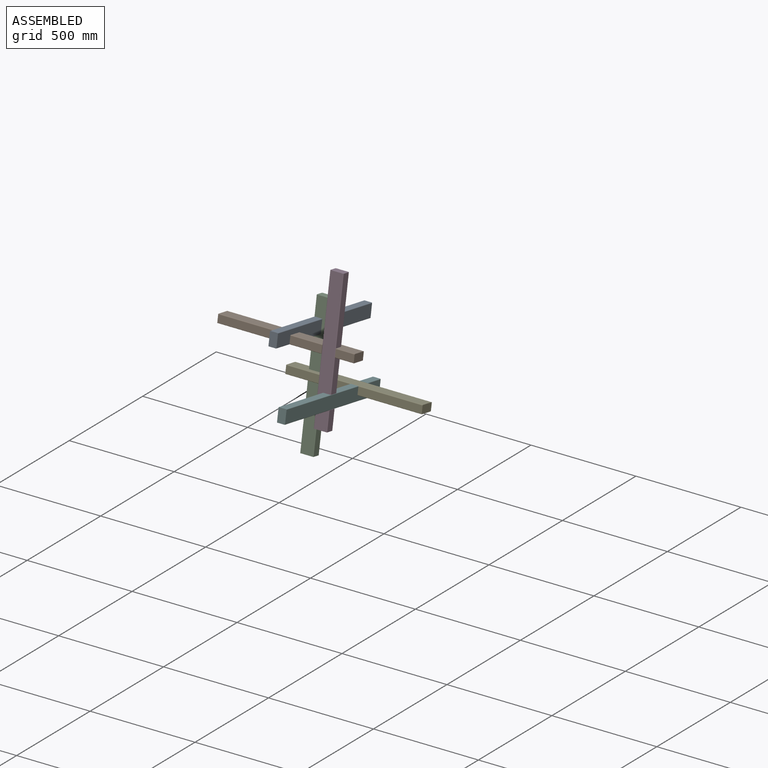
[diagram: assembled view]
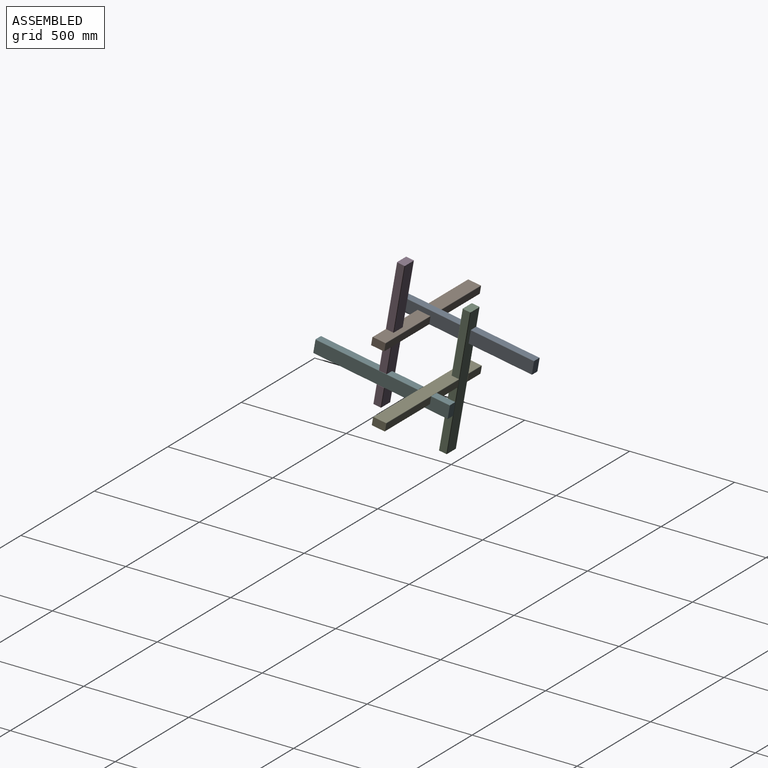
[diagram: assembled view, second angle]
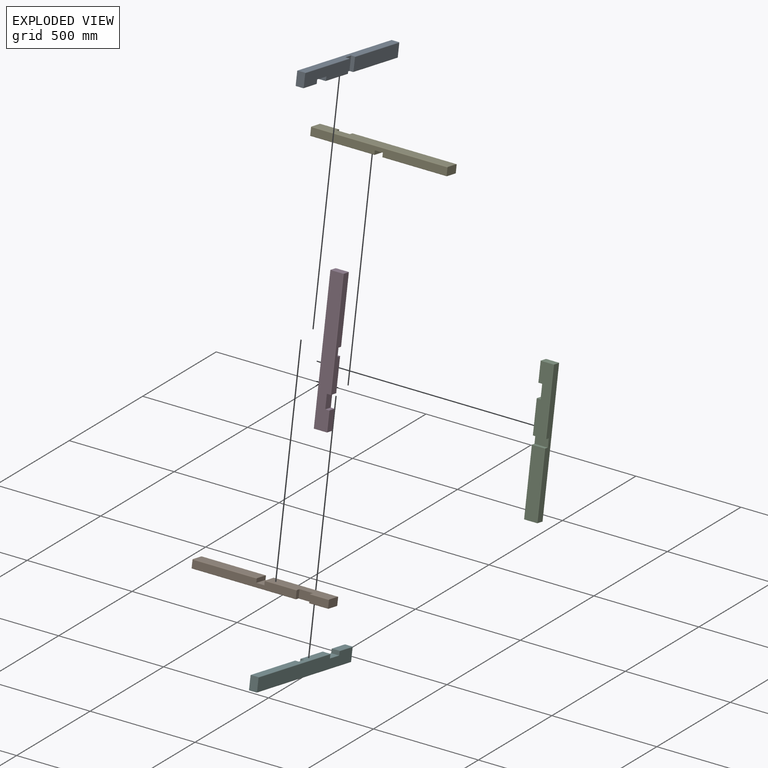
[diagram: exploded view]
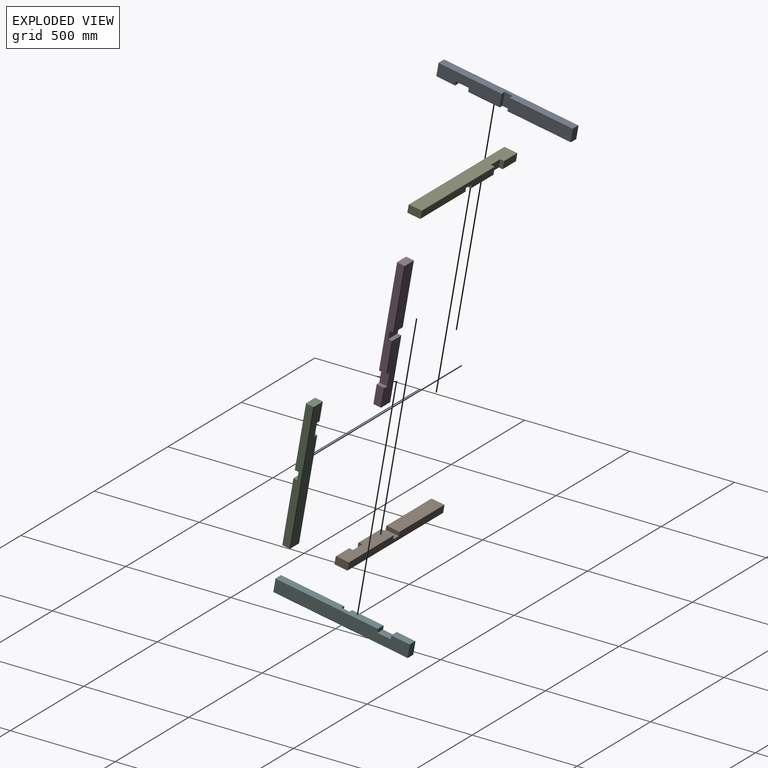
[diagram: exploded view, second angle]
ASSEMBLY  parts=6 mates=5
PART A: 22 faces, bbox 63.5x38.1x650 mm
  f0: plane 496.25x34.1mm, normal (-1,0,0), area 16272.5mm2, adj f8,f11,f12,f15,f16,f17,f18,f21
  f1: cylinder r=2mm len=90mm, axis (0,0,-1), area 282.7mm2, adj f2,f6,f10,f20
  f2: plane 305.95x59.5mm, normal (0,-1,0), area 17117.1mm2, adj f1,f8,f9,f10,f17,f19,f20,f21
  f3: plane 650x59.5mm, normal (0,1,0), area 37588.1mm2, adj f4,f10,f11,f14,f15,f19,f20,f21
  f4: cylinder r=2mm len=90mm, axis (0,0,1), area 282.7mm2, adj f3,f6,f10,f20
  f5: plane 305.95x59.5mm, normal (0,-1,0), area 18204mm2, adj f11,f12,f13,f18
  f6: plane 90x34.1mm, normal (-1,0,0), area 3069mm2, adj f1,f4,f10,f20
  f7: plane 650x34.1mm, normal (1,0,0), area 21515.4mm2, adj f9,f10,f11,f13,f14,f16,f17,f18
  f8: cylinder r=2mm len=152.2mm, axis (0,0,-1), area 478.2mm2, adj f0,f2,f17,f21
  f9: cylinder r=2mm len=305.95mm, axis (0,0,1), area 961.2mm2, adj f2,f7,f10,f17
  f10: plane 63.5x38.1mm, normal (0,0,1), area 2415.9mm2, adj f1,f2,f3,f4,f6,f7,f9,f14
  f11: plane 63.5x38.1mm, normal (0,0,-1), area 2415.9mm2, adj f0,f3,f5,f7,f12,f13,f14,f15
  f12: cylinder r=2mm len=305.95mm, axis (0,0,-1), area 961.2mm2, adj f0,f5,f11,f18
  f13: cylinder r=2mm len=305.95mm, axis (0,0,1), area 961.2mm2, adj f5,f7,f11,f18
  f14: cylinder r=2mm len=650mm, axis (0,0,-1), area 2042mm2, adj f3,f7,f10,f11
  f15: cylinder r=2mm len=496.25mm, axis (0,0,1), area 1559mm2, adj f0,f3,f11,f21
  f16: plane 63.5x38.1mm, normal (0,-1,0), area 2419.4mm2, adj f0,f7,f17,f18
  f17: plane 63.5x19.05mm, normal (0,0,-1), area 1208mm2, adj f0,f2,f7,f8,f9,f16
  f18: plane 63.5x19.05mm, normal (0,0,1), area 1208mm2, adj f0,f5,f7,f12,f13,f16
  f19: plane 63.75x38.1mm, normal (-1,0,0), area 2428.9mm2, adj f2,f3,f20,f21
  f20: plane 38.1x19.05mm, normal (0,0,-1), area 724.1mm2, adj f1,f2,f3,f4,f6,f19
  f21: plane 38.1x19.05mm, normal (0,0,1), area 724.1mm2, adj f0,f2,f3,f8,f15,f19
PART B: 22 faces, bbox 63.5x38.1x650 mm
  f0: plane 496.25x34.1mm, normal (1,0,0), area 16272.5mm2, adj f1,f4,f11,f13,f16,f17,f18,f20
  f1: cylinder r=2mm len=152.2mm, axis (0,0,1), area 478.2mm2, adj f0,f2,f17,f20
  f2: plane 305.95x59.5mm, normal (0,-1,0), area 17117.1mm2, adj f1,f8,f9,f10,f17,f19,f20,f21
  f3: plane 650x59.5mm, normal (0,1,0), area 37588.1mm2, adj f4,f10,f11,f14,f15,f19,f20,f21
  f4: cylinder r=2mm len=496.25mm, axis (0,0,-1), area 1559mm2, adj f0,f3,f11,f20
  f5: plane 305.95x59.5mm, normal (0,-1,0), area 18204mm2, adj f11,f12,f13,f18
  f6: plane 650x34.1mm, normal (-1,0,0), area 21515.4mm2, adj f8,f10,f11,f12,f15,f16,f17,f18
  f7: plane 90x34.1mm, normal (1,0,0), area 3069mm2, adj f9,f10,f14,f21
  f8: cylinder r=2mm len=305.95mm, axis (0,0,-1), area 961.2mm2, adj f2,f6,f10,f17
  f9: cylinder r=2mm len=90mm, axis (0,0,1), area 282.7mm2, adj f2,f7,f10,f21
  f10: plane 63.5x38.1mm, normal (0,0,1), area 2415.9mm2, adj f2,f3,f6,f7,f8,f9,f14,f15
  f11: plane 63.5x38.1mm, normal (0,0,-1), area 2415.9mm2, adj f0,f3,f4,f5,f6,f12,f13,f15
  f12: cylinder r=2mm len=305.95mm, axis (0,0,-1), area 961.2mm2, adj f5,f6,f11,f18
  f13: cylinder r=2mm len=305.95mm, axis (0,0,1), area 961.2mm2, adj f0,f5,f11,f18
  f14: cylinder r=2mm len=90mm, axis (0,0,-1), area 282.7mm2, adj f3,f7,f10,f21
  f15: cylinder r=2mm len=650mm, axis (0,0,1), area 2042mm2, adj f3,f6,f10,f11
  f16: plane 63.5x38.1mm, normal (0,-1,0), area 2419.4mm2, adj f0,f6,f17,f18
  f17: plane 63.5x19.05mm, normal (0,0,-1), area 1208mm2, adj f0,f1,f2,f6,f8,f16
  f18: plane 63.5x19.05mm, normal (0,0,1), area 1208mm2, adj f0,f5,f6,f12,f13,f16
  f19: plane 63.75x38.1mm, normal (1,0,0), area 2428.9mm2, adj f2,f3,f20,f21
  f20: plane 38.1x19.05mm, normal (0,0,1), area 724.1mm2, adj f0,f1,f2,f3,f4,f19
  f21: plane 38.1x19.05mm, normal (0,0,-1), area 724.1mm2, adj f2,f3,f7,f9,f14,f19
PART C: same geometry as A
PART D: same geometry as B
PART E: same geometry as A
PART F: same geometry as B
PLACE A rot(axis=(0.54,-0.54,0.64),114.4deg) t=(-632.01,360.99,584.94)mm
PLACE B rot(axis=(-0.61,0.51,-0.61),125.9deg) t=(-957.01,-161.32,664.15)mm
PLACE C rot(axis=(-1,0,0),10deg) t=(-619.31,-50.78,121.28)mm
PLACE D rot(axis=(1,0,0),170deg) t=(-428.88,-117.39,986.41)mm
PLACE E rot(axis=(0.54,-0.64,-0.54),114.4deg) t=(-91.18,-6.86,443.55)mm
PLACE F rot(axis=(-0.61,-0.61,-0.51),125.9deg) t=(-416.18,-529.16,522.75)mm
MATE fastened E.f19 <-> C.f16  axis (0,0.98,-0.17) through (-619.31,5.65,441.34)mm
MATE fastened B.f16 <-> A.f19  axis (0,0.17,0.98) through (-632.01,-161.32,664.15)mm
MATE fastened B.f19 <-> D.f16  axis (0,-0.98,0.17) through (-428.88,-173.83,666.35)mm
MATE fastened A.f16 <-> C.f19  axis (1,0,0) through (-632.01,40.92,641.38)mm
MATE fastened E.f16 <-> F.f19  axis (0,-0.17,-0.98) through (-416.18,-6.86,443.55)mm
